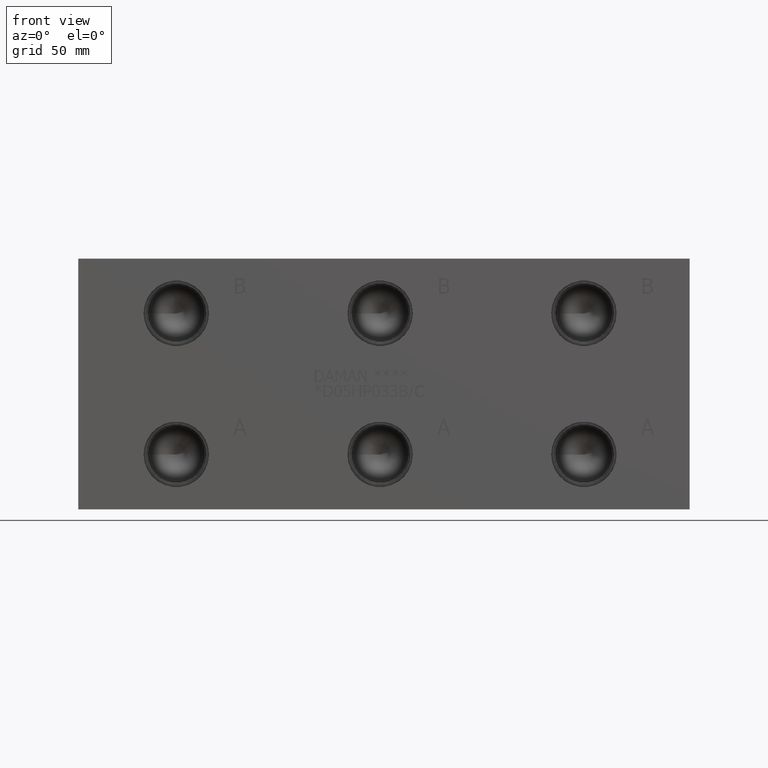
[diagram: clean part render]
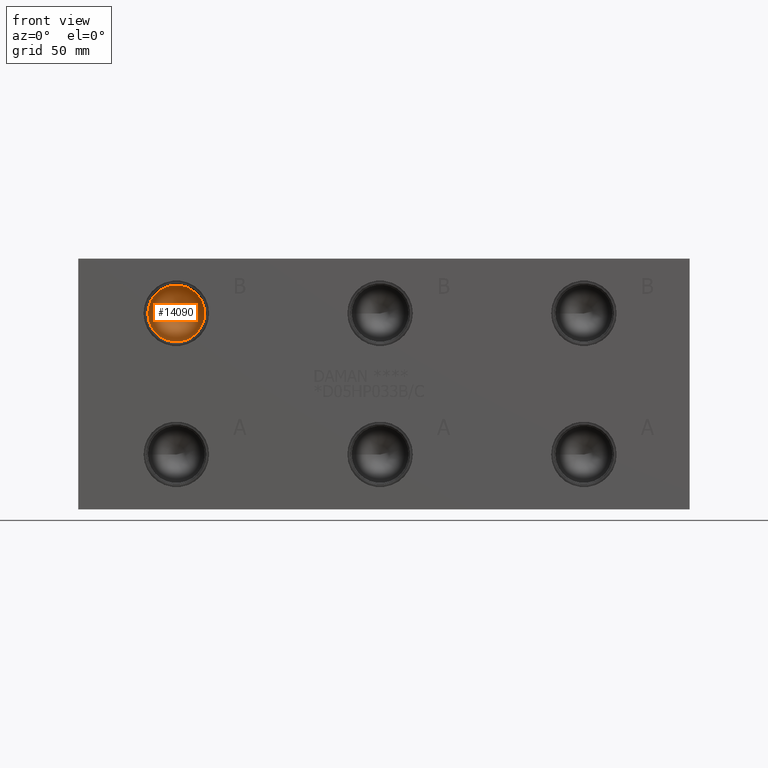
[diagram: same view with one face highlighted and labeled with its STEP entity id]
A machine part, front view. The second image highlights one B-rep face of the part: STEP entity #14090.
In plain terms, the highlighted conical surface has half-angle 60 deg.
Its self-contained STEP definition (entity closure, byte-faithful):
#38=CONICAL_SURFACE('',#14834,5.7531,1.0471975511966);
#533=CIRCLE('',#14835,11.5062);
#534=CIRCLE('',#14836,11.5062);
#1822=FACE_OUTER_BOUND('',#2639,.T.);
#2639=EDGE_LOOP('',(#12048,#12049,#12050,#12051));
#3947=LINE('',#24093,#5198);
#5198=VECTOR('',#17536,5.7531);
#6460=VERTEX_POINT('',#24089);
#6461=VERTEX_POINT('',#24090);
#6462=VERTEX_POINT('',#24092);
#8379=EDGE_CURVE('',#6460,#6461,#533,.T.);
#8380=EDGE_CURVE('',#6461,#6462,#3947,.T.);
#8381=EDGE_CURVE('',#6461,#6460,#534,.T.);
#12048=ORIENTED_EDGE('',*,*,#8379,.T.);
#12049=ORIENTED_EDGE('',*,*,#8380,.T.);
#12050=ORIENTED_EDGE('',*,*,#8380,.F.);
#12051=ORIENTED_EDGE('',*,*,#8381,.T.);
#14090=ADVANCED_FACE('',(#1822),#38,.F.);
#14834=AXIS2_PLACEMENT_3D('',#24088,#17532,#17533);
#14835=AXIS2_PLACEMENT_3D('',#24091,#17534,#17535);
#14836=AXIS2_PLACEMENT_3D('',#24094,#17537,#17538);
#17532=DIRECTION('center_axis',(0.,-1.,0.));
#17533=DIRECTION('ref_axis',(1.,0.,0.));
#17534=DIRECTION('center_axis',(0.,-1.,0.));
#17535=DIRECTION('ref_axis',(1.,0.,0.));
#17536=DIRECTION('',(0.866025403784439,0.5,1.06057523872491E-16));
#17537=DIRECTION('center_axis',(0.,-1.,0.));
#17538=DIRECTION('ref_axis',(1.,0.,0.));
#24088=CARTESIAN_POINT('Origin',(39.6748,31.6425538336748,79.375));
#24089=CARTESIAN_POINT('',(51.181,28.321,79.375));
#24090=CARTESIAN_POINT('',(28.1686,28.321,79.375));
#24091=CARTESIAN_POINT('Origin',(39.6748,28.321,79.375));
#24092=CARTESIAN_POINT('',(39.6748,34.9641076673497,79.375));
#24093=CARTESIAN_POINT('',(33.9217,31.6425538336748,79.375));
#24094=CARTESIAN_POINT('Origin',(39.6748,28.321,79.375));